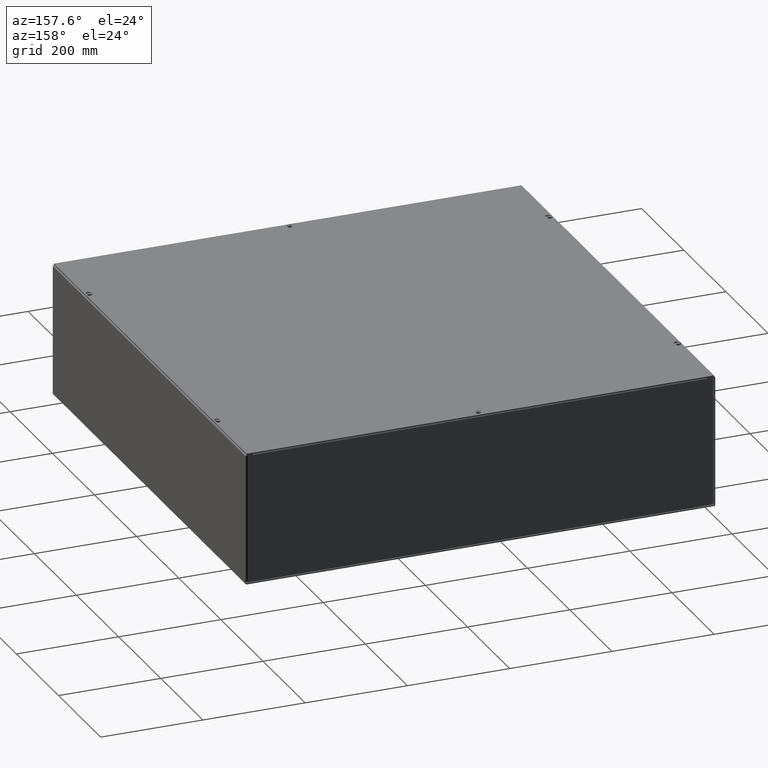
[diagram: clean part render]
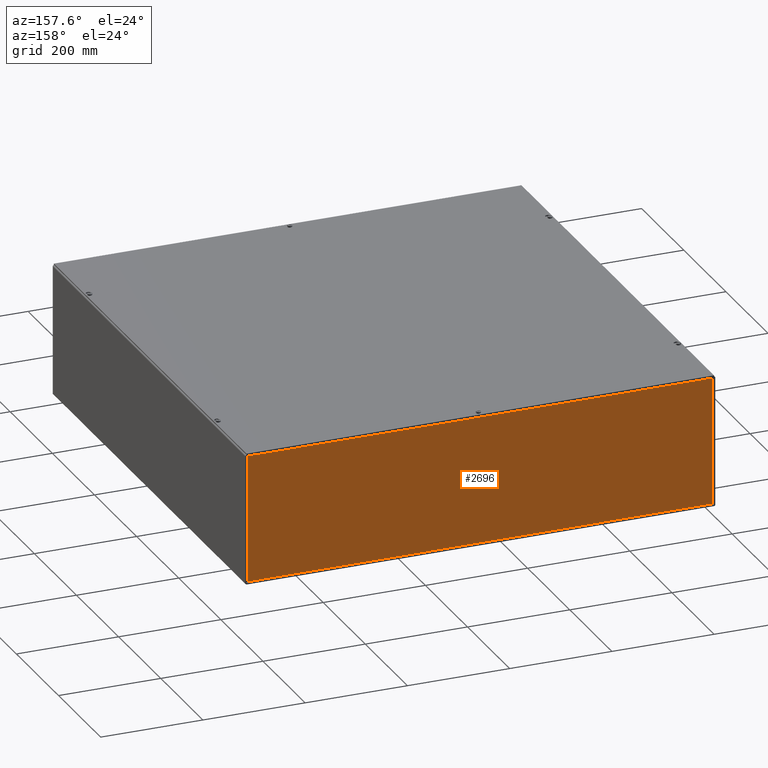
[diagram: same view with one face highlighted and labeled with its STEP entity id]
A machine part, auxiliary view. The second image highlights one B-rep face of the part: STEP entity #2696.
In plain terms, the highlighted planar face has unit normal (0, -1, -0).
Its self-contained STEP definition (entity closure, byte-faithful):
#168=PLANE('',#2901);
#287=LINE('',#4010,#507);
#302=LINE('',#4046,#522);
#305=LINE('',#4053,#525);
#309=LINE('',#4060,#529);
#311=LINE('',#4064,#531);
#312=LINE('',#4066,#532);
#313=LINE('',#4068,#533);
#314=LINE('',#4070,#534);
#315=LINE('',#4072,#535);
#316=LINE('',#4074,#536);
#317=LINE('',#4076,#537);
#318=LINE('',#4077,#538);
#507=VECTOR('',#3293,34.7813);
#522=VECTOR('',#3332,0.000199999999999981);
#525=VECTOR('',#3337,0.0157999999999999);
#529=VECTOR('',#3343,0.000199999999999981);
#531=VECTOR('',#3347,0.000199999999999981);
#532=VECTOR('',#3348,0.000199999999998583);
#533=VECTOR('',#3349,0.0157999999999999);
#534=VECTOR('',#3350,0.4998);
#535=VECTOR('',#3351,9.7969);
#536=VECTOR('',#3352,35.7813);
#537=VECTOR('',#3353,9.7969);
#538=VECTOR('',#3354,0.4998);
#772=FACE_OUTER_BOUND('',#954,.T.);
#954=EDGE_LOOP('',(#1992,#1993,#1994,#1995,#1996,#1997,#1998,#1999,#2000,
#2001,#2002,#2003));
#1226=VERTEX_POINT('',#4007);
#1227=VERTEX_POINT('',#4009);
#1236=VERTEX_POINT('',#4045);
#1238=VERTEX_POINT('',#4051);
#1239=VERTEX_POINT('',#4052);
#1242=VERTEX_POINT('',#4063);
#1243=VERTEX_POINT('',#4065);
#1244=VERTEX_POINT('',#4067);
#1245=VERTEX_POINT('',#4069);
#1246=VERTEX_POINT('',#4071);
#1247=VERTEX_POINT('',#4073);
#1248=VERTEX_POINT('',#4075);
#1490=EDGE_CURVE('',#1227,#1226,#287,.T.);
#1508=EDGE_CURVE('',#1236,#1227,#302,.T.);
#1511=EDGE_CURVE('',#1238,#1239,#305,.T.);
#1515=EDGE_CURVE('',#1239,#1236,#309,.T.);
#1517=EDGE_CURVE('',#1226,#1242,#311,.T.);
#1518=EDGE_CURVE('',#1242,#1243,#312,.T.);
#1519=EDGE_CURVE('',#1243,#1244,#313,.T.);
#1520=EDGE_CURVE('',#1245,#1244,#314,.T.);
#1521=EDGE_CURVE('',#1245,#1246,#315,.T.);
#1522=EDGE_CURVE('',#1246,#1247,#316,.T.);
#1523=EDGE_CURVE('',#1247,#1248,#317,.T.);
#1524=EDGE_CURVE('',#1238,#1248,#318,.T.);
#1992=ORIENTED_EDGE('',*,*,#1511,.T.);
#1993=ORIENTED_EDGE('',*,*,#1515,.T.);
#1994=ORIENTED_EDGE('',*,*,#1508,.T.);
#1995=ORIENTED_EDGE('',*,*,#1490,.T.);
#1996=ORIENTED_EDGE('',*,*,#1517,.T.);
#1997=ORIENTED_EDGE('',*,*,#1518,.T.);
#1998=ORIENTED_EDGE('',*,*,#1519,.T.);
#1999=ORIENTED_EDGE('',*,*,#1520,.F.);
#2000=ORIENTED_EDGE('',*,*,#1521,.T.);
#2001=ORIENTED_EDGE('',*,*,#1522,.T.);
#2002=ORIENTED_EDGE('',*,*,#1523,.T.);
#2003=ORIENTED_EDGE('',*,*,#1524,.F.);
#2696=ADVANCED_FACE('',(#772),#168,.F.);
#2901=AXIS2_PLACEMENT_3D('',#4062,#3345,#3346);
#3293=DIRECTION('',(1.,8.04286310607196E-017,0.));
#3332=DIRECTION('',(0.,1.,0.));
#3337=DIRECTION('',(0.,-1.,0.));
#3343=DIRECTION('',(1.,0.,0.));
#3345=DIRECTION('center_axis',(0.,0.,1.));
#3346=DIRECTION('ref_axis',(1.,0.,0.));
#3347=DIRECTION('',(0.,-1.,0.));
#3348=DIRECTION('',(1.,0.,0.));
#3349=DIRECTION('',(0.,1.,0.));
#3350=DIRECTION('',(-1.,-1.16558847729675E-016,0.));
#3351=DIRECTION('',(0.,-1.,0.));
#3352=DIRECTION('',(-1.,0.,0.));
#3353=DIRECTION('',(-3.05617634257371E-016,1.,0.));
#3354=DIRECTION('',(-1.,-1.16558847729675E-016,0.));
#4007=CARTESIAN_POINT('',(35.39065,9.89065,2.18547839493141E-017));
#4009=CARTESIAN_POINT('',(0.609349999999997,9.89065,2.18547839493141E-017));
#4010=CARTESIAN_POINT('',(9.304675,9.89065,0.));
#4045=CARTESIAN_POINT('',(0.609349999999997,9.89045,1.09273919746571E-017));
#4046=CARTESIAN_POINT('',(0.609349999999996,7.4217875,0.));
#4051=CARTESIAN_POINT('',(0.609149999999997,9.90625,1.09273919746571E-017));
#4052=CARTESIAN_POINT('',(0.609149999999997,9.89045,1.09273919746571E-017));
#4053=CARTESIAN_POINT('',(0.609149999999997,7.4296875,0.));
#4060=CARTESIAN_POINT('',(9.304575,9.89045,0.));
#4062=CARTESIAN_POINT('Origin',(18.,4.953125,0.));
#4063=CARTESIAN_POINT('',(35.39065,9.89045,1.09273919746571E-017));
#4064=CARTESIAN_POINT('',(35.39065,7.4296875,0.));
#4065=CARTESIAN_POINT('',(35.39085,9.89045,1.09273919746571E-017));
#4066=CARTESIAN_POINT('',(26.695325,9.89045,0.));
#4067=CARTESIAN_POINT('',(35.39085,9.90625,1.09273919746571E-017));
#4068=CARTESIAN_POINT('',(35.39085,7.4217875,0.));
#4069=CARTESIAN_POINT('',(35.89065,9.90625,0.));
#4070=CARTESIAN_POINT('',(36.,9.90625,0.));
#4071=CARTESIAN_POINT('',(35.89065,0.10935,1.09273919746571E-017));
#4072=CARTESIAN_POINT('',(35.89065,7.4296875,0.));
#4073=CARTESIAN_POINT('',(0.10935,0.10935,1.09273919746571E-017));
#4074=CARTESIAN_POINT('',(26.945325,0.10935,0.));
#4075=CARTESIAN_POINT('',(0.109349999999997,9.90625,1.09273919746571E-017));
#4076=CARTESIAN_POINT('',(0.109349999999999,2.5312375,0.));
#4077=CARTESIAN_POINT('',(36.,9.90625,0.));